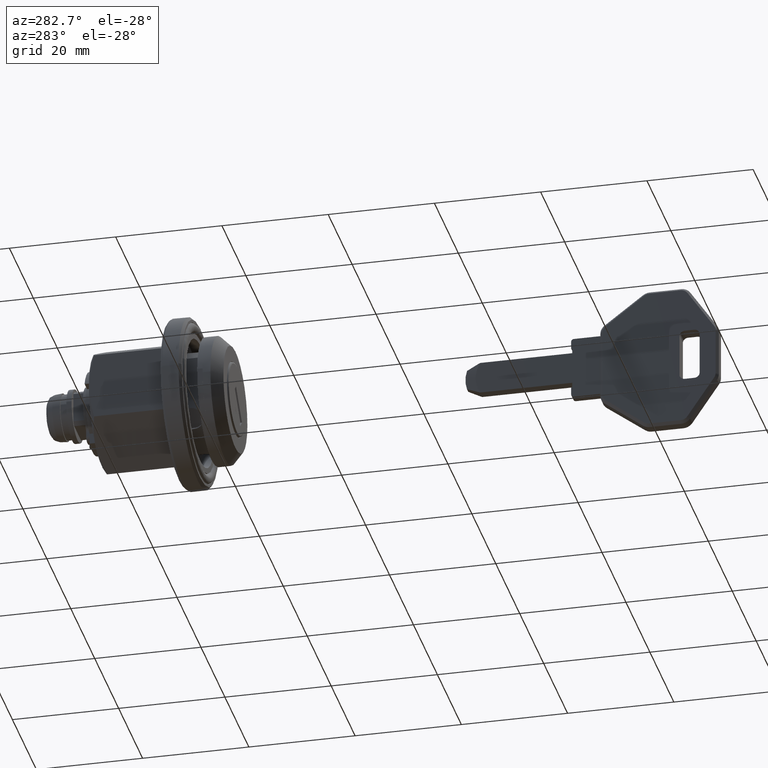
[diagram: clean part render]
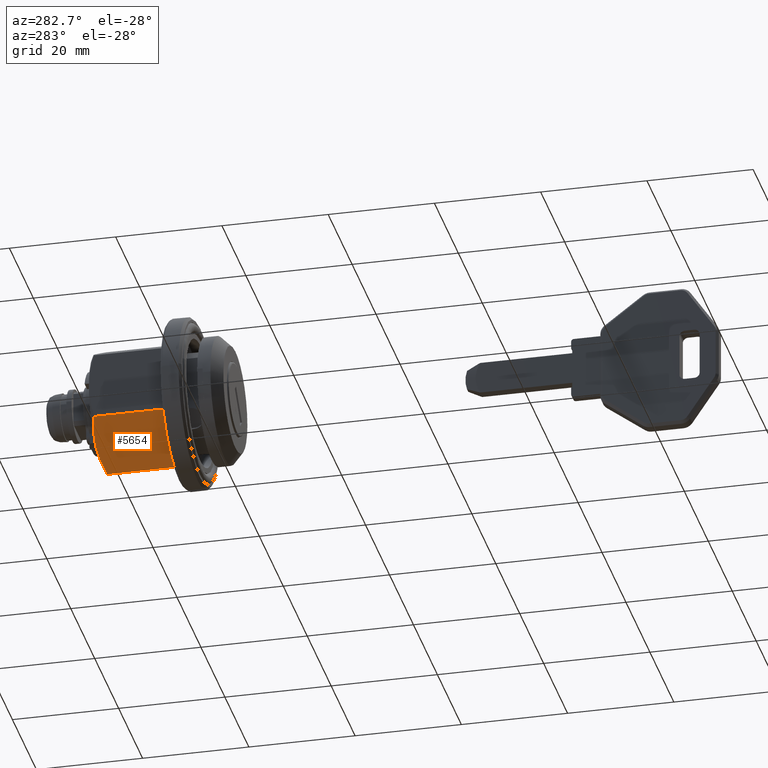
[diagram: same view with one face highlighted and labeled with its STEP entity id]
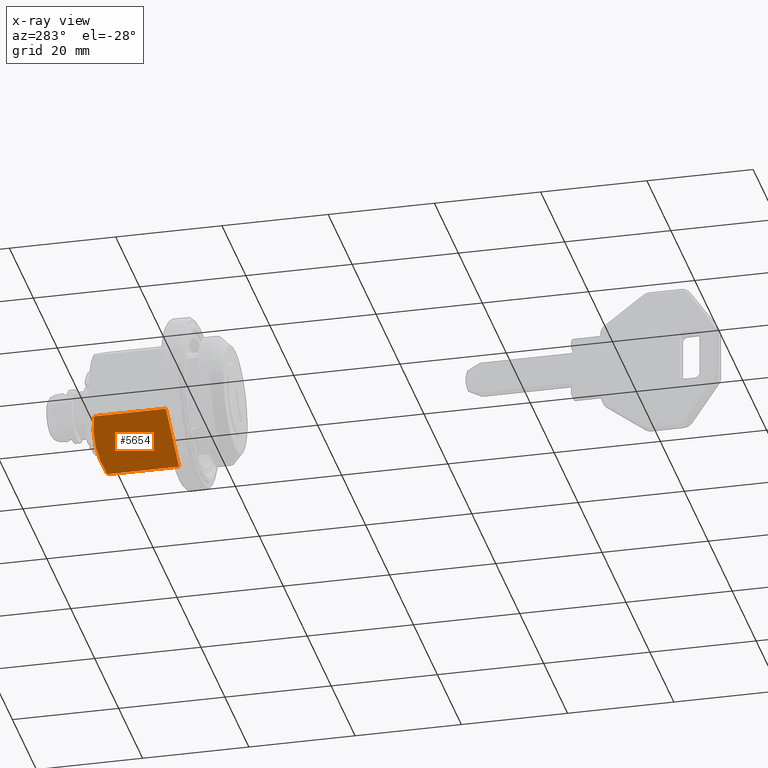
[diagram: x-ray of the same camera — body ghosted, the highlighted face saturated]
A machine part, auxiliary view. The second image highlights one B-rep face of the part: STEP entity #5654.
The next image is the same camera in x-ray: the body ghosted, the highlighted face saturated — about 0% of this face is hidden behind the body in this view.
In plain terms, the highlighted face is a freeform B-spline surface patch.
Its self-contained STEP definition (entity closure, byte-faithful):
#5197=CARTESIAN_POINT('',(25.099999999990700,5.499999999934249,-9.526279441514930));
#5198=VERTEX_POINT('',#5197);
#5308=CARTESIAN_POINT('',(24.117519627714799,10.999999999819019,-6.350852961251650));
#5309=VERTEX_POINT('',#5308);
#5326=CARTESIAN_POINT('',(25.099999999990700,5.499999999934249,-9.526279441514930));
#5327=CARTESIAN_POINT('',(25.099998712427439,5.730331168421103,-9.393297679598373));
#5328=CARTESIAN_POINT('',(25.094388939727001,5.961779332983666,-9.259671019484733));
#5329=CARTESIAN_POINT('',(25.071955354587331,6.426112139823789,-8.991588348462015));
#5330=CARTESIAN_POINT('',(25.054988386490368,6.659218333826372,-8.857004424604853));
#5331=CARTESIAN_POINT('',(24.987826541785939,7.356204272127752,-8.454599405505165));
#5332=CARTESIAN_POINT('',(24.921332707725110,7.817745919148218,-8.188128211355679));
#5333=CARTESIAN_POINT('',(24.664569410931520,9.194153745190985,-7.393458782475179));
#5334=CARTESIAN_POINT('',(24.417241351924542,10.100834827158090,-6.869986215732324));
#5335=CARTESIAN_POINT('',(24.117519627714799,10.999999999819019,-6.350852961251650));
#5336=B_SPLINE_CURVE_WITH_KNOTS('',3,(#5326,#5327,#5328,#5329,#5330,#5331,#5332,#5333,#5334,#5335),.UNSPECIFIED.,.F.,.U.,(4,2,2,2,4),(0.500936495156226,0.562500000000002,0.625000000000002,0.750000000000001,1.0),.UNSPECIFIED.);
#5337=EDGE_CURVE('',#5198,#5309,#5336,.T.);
#5548=CARTESIAN_POINT('',(24.117519627714799,-2.340628E-010,-12.701705922097920));
#5549=VERTEX_POINT('',#5548);
#5550=CARTESIAN_POINT('',(24.117519627714799,-2.340628E-010,-12.701705922097920));
#5551=CARTESIAN_POINT('',(24.416868185786640,0.898045674438517,-12.183219010350340));
#5552=CARTESIAN_POINT('',(24.663585612650781,1.802638775339839,-11.660951940037890));
#5553=CARTESIAN_POINT('',(24.919923411926309,3.173677721859585,-10.869382235195250));
#5554=CARTESIAN_POINT('',(24.986367495798849,3.633054575097985,-10.604160885318580));
#5555=CARTESIAN_POINT('',(25.076250467318999,4.557158220827233,-10.070629396697679));
#5556=CARTESIAN_POINT('',(25.099652193910678,5.021889636233665,-9.802316588911902));
#5557=CARTESIAN_POINT('',(25.099998711198399,5.492992729886603,-9.530325090975312));
#5558=CARTESIAN_POINT('',(25.099999989870650,5.496496235810886,-9.528302340886821));
#5559=CARTESIAN_POINT('',(25.099999999990700,5.499999999934249,-9.526279441514930));
#5560=B_SPLINE_CURVE_WITH_KNOTS('',3,(#5550,#5551,#5552,#5553,#5554,#5555,#5556,#5557,#5558,#5559),.UNSPECIFIED.,.F.,.U.,(4,2,2,2,4),(0.0,0.250000000000001,0.375000000000002,0.500000000000002,0.500936495127682),.UNSPECIFIED.);
#5561=EDGE_CURVE('',#5549,#5198,#5560,.T.);
#5616=CARTESIAN_POINT('',(10.599999999991001,-8.673617E-016,-12.701705922232000));
#5617=VERTEX_POINT('',#5616);
#5623=CARTESIAN_POINT('',(24.117519627714799,-2.340628E-010,-12.701705922097920));
#5624=CARTESIAN_POINT('',(10.599999999991001,-8.673617E-016,-12.701705922232000));
#5625=QUASI_UNIFORM_CURVE('',1,(#5623,#5624),.UNSPECIFIED.,.F.,.U.);
#5626=EDGE_CURVE('',#5549,#5617,#5625,.T.);
#5632=CARTESIAN_POINT('',(9.875725436441705,-0.549449978803225,-13.018931015400270));
#5633=CARTESIAN_POINT('',(9.875725436441703,11.549450273728761,-6.033627697702508));
#5634=CARTESIAN_POINT('',(25.824275341380609,-0.549449978803225,-13.018931015400270));
#5635=CARTESIAN_POINT('',(25.824275341380609,11.549450273728761,-6.033627697702508));
#5636=B_SPLINE_SURFACE_WITH_KNOTS('',1,1,((#5632,#5634),(#5633,#5635)),.UNSPECIFIED.,.F.,.F.,.U.,(2,2),(2,2),(0.0,13.970606635395541),(0.0,15.948549904938909),.UNSPECIFIED.);
#5637=ORIENTED_EDGE('',*,*,#5561,.F.);
#5638=ORIENTED_EDGE('',*,*,#5626,.T.);
#5639=CARTESIAN_POINT('',(10.599999999991001,11.0,-6.350852961146051));
#5640=VERTEX_POINT('',#5639);
#5641=CARTESIAN_POINT('',(10.599999999991001,11.0,-6.350852961146051));
#5642=CARTESIAN_POINT('',(10.599999999991001,-8.673617E-016,-12.701705922232000));
#5643=QUASI_UNIFORM_CURVE('',1,(#5641,#5642),.UNSPECIFIED.,.F.,.U.);
#5644=EDGE_CURVE('',#5640,#5617,#5643,.T.);
#5645=ORIENTED_EDGE('',*,*,#5644,.F.);
#5646=CARTESIAN_POINT('',(24.117519627714799,10.999999999819019,-6.350852961251650));
#5647=CARTESIAN_POINT('',(10.599999999991001,11.0,-6.350852961146051));
#5648=QUASI_UNIFORM_CURVE('',1,(#5646,#5647),.UNSPECIFIED.,.F.,.U.);
#5649=EDGE_CURVE('',#5309,#5640,#5648,.T.);
#5650=ORIENTED_EDGE('',*,*,#5649,.F.);
#5651=ORIENTED_EDGE('',*,*,#5337,.F.);
#5652=EDGE_LOOP('',(#5637,#5638,#5645,#5650,#5651));
#5653=FACE_OUTER_BOUND('',#5652,.T.);
#5654=ADVANCED_FACE('',(#5653),#5636,.T.);